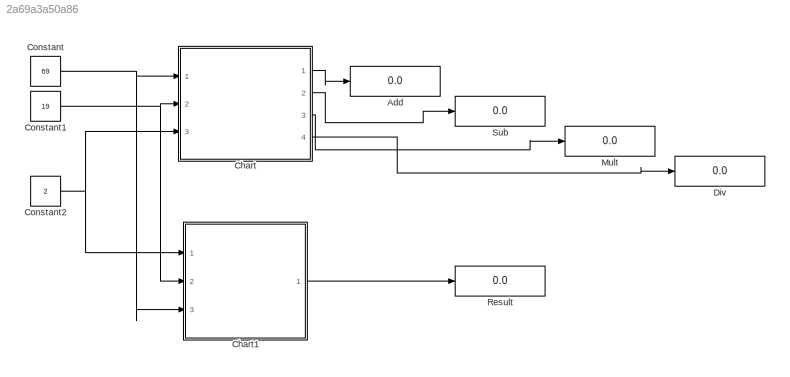
MODEL slx_2a69a3a50a86
KIND model
CONFIG AbsTol = auto
CONFIG EnableMultiTasking = off
CONFIG FixedStep = auto
CONFIG MaxStep = auto
CONFIG MinStep = auto
CONFIG RelTol = 1e-3
CONFIG SampleTimeConstraint = Unconstrained
CONFIG Solver = FixedStepDiscrete
CONFIG SolverName = FixedStepDiscrete
CONFIG StartTime = 0.0
CONFIG StopTime = 10.0
BLOCK [Display] Add
  Decimation = 1
  Ports = [1]
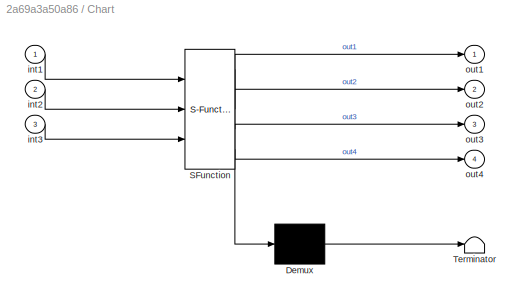
BLOCK [SubSystem] Chart
  ErrorFcn = Stateflow.Translate.translate
  PermitHierarchicalResolution = ExplicitOnly
  Ports = [3, 4]
  RequestExecContextInheritance = off
  SFBlockType = Chart
  TreatAsAtomicUnit = on
BLOCK [Demux] Chart/ Demux 
  Outputs = 1
  Ports = [1, 1]
BLOCK [S-Function] Chart/ SFunction 
  EnableBusSupport = on
  FunctionName = sf_sfun
  PortCounts = [3 5]
  Ports = [3, 5]
  SFcnIsStateOwnerBlock = off
  SFunctionDeploymentMode = off
  Tag = Stateflow S-Function calc 3
BLOCK [Terminator] Chart/ Terminator 
BLOCK [Inport] Chart/int1
  IconDisplay = Port number
BLOCK [Inport] Chart/int2
  IconDisplay = Port number
  Port = 2
BLOCK [Inport] Chart/int3
  IconDisplay = Port number
  Port = 3
BLOCK [Outport] Chart/out1
  IconDisplay = Port number
BLOCK [Outport] Chart/out2
  IconDisplay = Port number
  Port = 2
BLOCK [Outport] Chart/out3
  IconDisplay = Port number
  Port = 3
BLOCK [Outport] Chart/out4
  IconDisplay = Port number
  Port = 4
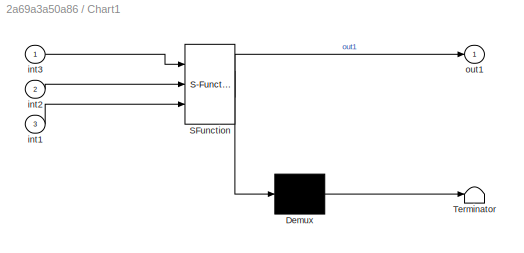
BLOCK [SubSystem] Chart1
  BlockKeywords = __PRM__SERIALIZED__DATA__:Stateflow Chart,Stateflow Diagram
  ErrorFcn = Stateflow.Translate.translate
  PermitHierarchicalResolution = ExplicitOnly
  Ports = [3, 1]
  RequestExecContextInheritance = off
  SFBlockType = Chart
  TreatAsAtomicUnit = on
BLOCK [Demux] Chart1/ Demux 
  Outputs = 1
  Ports = [1, 1]
BLOCK [S-Function] Chart1/ SFunction 
  EnableBusSupport = on
  FunctionName = sf_sfun
  PortCounts = [3 2]
  Ports = [3, 2]
  SFcnIsStateOwnerBlock = off
  SFunctionDeploymentMode = off
  Tag = Stateflow S-Function calc 1
BLOCK [Terminator] Chart1/ Terminator 
BLOCK [Inport] Chart1/int1
  IconDisplay = Port number
  Port = 3
BLOCK [Inport] Chart1/int2
  IconDisplay = Port number
  Port = 2
BLOCK [Inport] Chart1/int3
  IconDisplay = Port number
BLOCK [Outport] Chart1/out1
  IconDisplay = Port number
BLOCK [Constant] Constant
  OutDataTypeStr = int32
  Value = 69
BLOCK [Constant] Constant1
  OutDataTypeStr = int32
  Value = 19
BLOCK [Constant] Constant2
  OutDataTypeStr = int32
  Value = 2
BLOCK [Display] Div
  Decimation = 1
  Ports = [1]
BLOCK [Display] Mult
  Decimation = 1
  Ports = [1]
BLOCK [Display] Result
  Decimation = 1
  Ports = [1]
BLOCK [Display] Sub
  Decimation = 1
  Ports = [1]
LINE Chart1:1 -> Result:1
LINE Chart:1 -> Add:1
LINE Chart:2 -> Sub:1
LINE Chart:3 -> Mult:1
LINE Chart:4 -> Div:1
NET Constant1:1 -> Chart1:2, Chart:2
NET Constant2:1 -> Chart1:1, Chart:3
NET Constant:1 -> Chart1:3, Chart:1
note: NET lines group one-source signal fan-out (src -> all destinations, sorted); 1:1 wires keep LINE
CHART Chart1 states=1 transitions=23
  STATE_LABEL 'Do not put any code along\nthe transitions that run\ndown the right side!'
CHART Chart states=7 transitions=6
  STATE_LABEL 'Sub\nout2 = int1 - int2;'
  STATE_LABEL 'Add\nout1 = int1 + int2;'
  STATE_LABEL 'Mult\nout3 = int1*int2;'
  STATE_LABEL 'SimpleCalculator\nentry:\nint1;\nint2;\nint3;'
  STATE_LABEL 'Add'
  STATE_LABEL 'Sub'
  STATE_LABEL 'Div\nout4 = int1/int2;'
